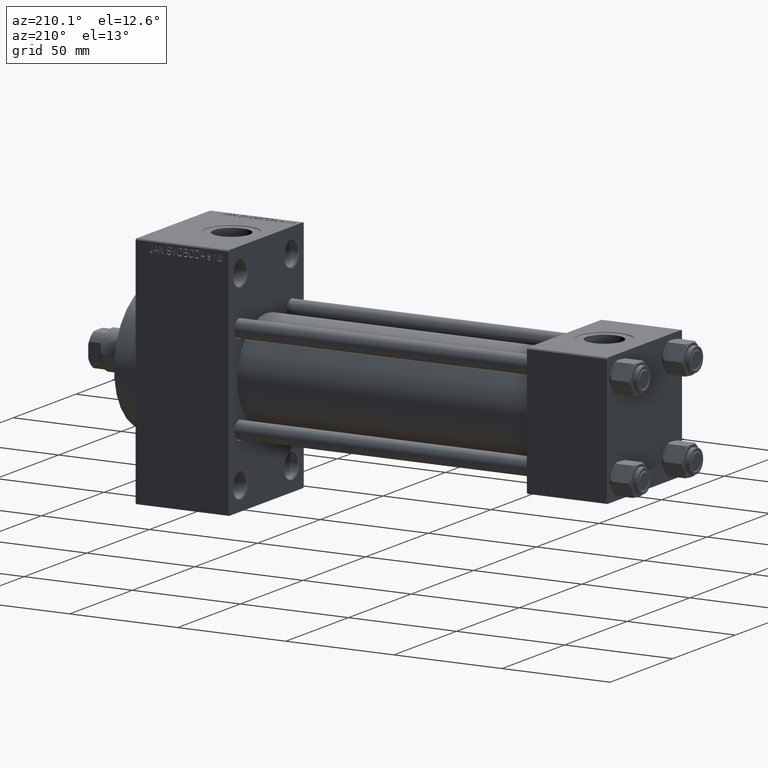
[diagram: clean part render]
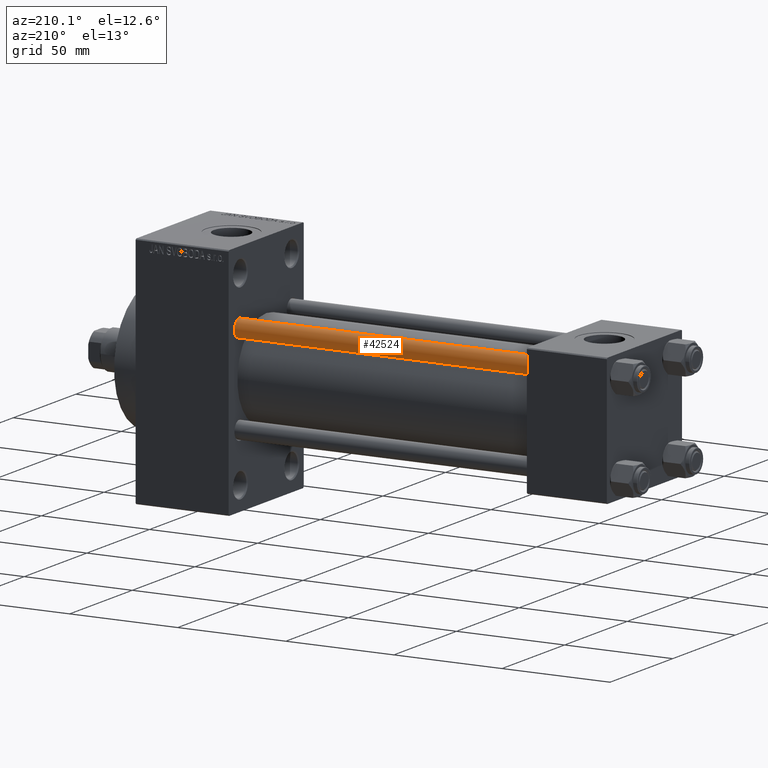
[diagram: same view with one face highlighted and labeled with its STEP entity id]
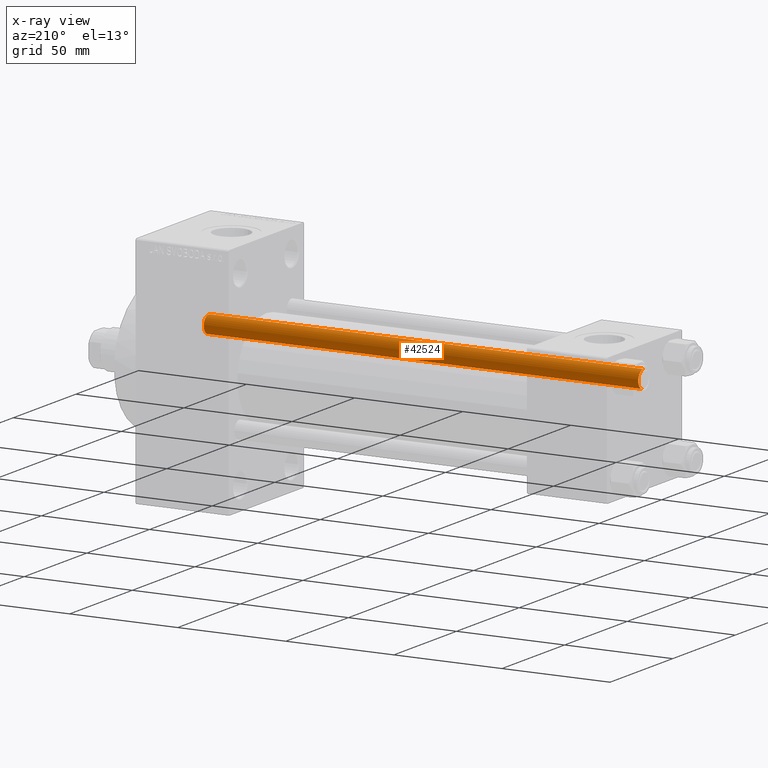
[diagram: x-ray of the same camera — body ghosted, the highlighted face saturated]
A machine part, auxiliary view. The second image highlights one B-rep face of the part: STEP entity #42524.
The next image is the same camera in x-ray: the body ghosted, the highlighted face saturated — about 0% of this face is hidden behind the body in this view.
In plain terms, the highlighted cylindrical surface (edge-blend (fillet) strip) has radius 4 mm, axis along (-1, -0, 0).
Its self-contained STEP definition (entity closure, byte-faithful):
#129 = CARTESIAN_POINT ( 'NONE',  ( 0.000000000000000000, 0.000000000000000000, 201.5000000000000000 ) ) ;
#1304 = ORIENTED_EDGE ( 'NONE', *, *, #17719, .T. ) ;
#2699 = CARTESIAN_POINT ( 'NONE',  ( 0.000000000000000000, 0.000000000000000000, 202.0000000000000000 ) ) ;
#3585 = CARTESIAN_POINT ( 'NONE',  ( 4.000000000000000000, 4.898587196589412829E-16, 202.0000000000000000 ) ) ;
#3744 = CIRCLE ( 'NONE', #33616, 4.000000000000000000 ) ;
#7874 = CARTESIAN_POINT ( 'NONE',  ( 4.000000000000000000, 4.898587196589412829E-16, 0.5000000000000004441 ) ) ;
#8035 = ORIENTED_EDGE ( 'NONE', *, *, #31050, .T. ) ;
#9084 = EDGE_CURVE ( 'NONE', #9222, #39484, #18455, .T. ) ;
#9222 = VERTEX_POINT ( 'NONE', #17457 ) ;
#9361 = AXIS2_PLACEMENT_3D ( 'NONE', #2699, #39164, #14848 ) ;
#11453 = EDGE_CURVE ( 'NONE', #39752, #46294, #17477, .T. ) ;
#11499 = CARTESIAN_POINT ( 'NONE',  ( -4.000000000000000000, 0.000000000000000000, 0.5000000000000004441 ) ) ;
#12237 = ORIENTED_EDGE ( 'NONE', *, *, #11453, .F. ) ;
#13636 = CARTESIAN_POINT ( 'NONE',  ( -4.000000000000000000, 0.000000000000000000, 202.0000000000000000 ) ) ;
#14848 = DIRECTION ( 'NONE',  ( -1.000000000000000000, 0.000000000000000000, 0.000000000000000000 ) ) ;
#17324 = FACE_OUTER_BOUND ( 'NONE', #32153, .T. ) ;
#17457 = CARTESIAN_POINT ( 'NONE',  ( 4.000000000000000000, 4.898587196589412829E-16, 201.5000000000000000 ) ) ;
#17477 = LINE ( 'NONE', #13636, #37906 ) ;
#17660 = CARTESIAN_POINT ( 'NONE',  ( -4.000000000000000000, 0.000000000000000000, 201.5000000000000000 ) ) ;
#17719 = EDGE_CURVE ( 'NONE', #39752, #9222, #25846, .T. ) ;
#18214 = DIRECTION ( 'NONE',  ( -0.000000000000000000, -0.000000000000000000, -1.000000000000000000 ) ) ;
#18455 = LINE ( 'NONE', #3585, #41763 ) ;
#21959 = DIRECTION ( 'NONE',  ( 1.000000000000000000, 0.000000000000000000, 0.000000000000000000 ) ) ;
#25846 = CIRCLE ( 'NONE', #30463, 4.000000000000000000 ) ;
#28123 = CYLINDRICAL_SURFACE ( 'NONE', #9361, 4.000000000000000000 ) ;
#30463 = AXIS2_PLACEMENT_3D ( 'NONE', #129, #43555, #21959 ) ;
#31050 = EDGE_CURVE ( 'NONE', #39484, #46294, #3744, .T. ) ;
#31471 = DIRECTION ( 'NONE',  ( 1.000000000000000000, 0.000000000000000000, 0.000000000000000000 ) ) ;
#32153 = EDGE_LOOP ( 'NONE', ( #1304, #39640, #8035, #12237 ) ) ;
#33616 = AXIS2_PLACEMENT_3D ( 'NONE', #45857, #42261, #31471 ) ;
#37906 = VECTOR ( 'NONE', #39784, 1000.000000000000000 ) ;
#39164 = DIRECTION ( 'NONE',  ( -0.000000000000000000, -0.000000000000000000, -1.000000000000000000 ) ) ;
#39484 = VERTEX_POINT ( 'NONE', #7874 ) ;
#39640 = ORIENTED_EDGE ( 'NONE', *, *, #9084, .T. ) ;
#39752 = VERTEX_POINT ( 'NONE', #17660 ) ;
#39784 = DIRECTION ( 'NONE',  ( -0.000000000000000000, -0.000000000000000000, -1.000000000000000000 ) ) ;
#41763 = VECTOR ( 'NONE', #18214, 1000.000000000000000 ) ;
#42261 = DIRECTION ( 'NONE',  ( -0.000000000000000000, -0.000000000000000000, 1.000000000000000000 ) ) ;
#42524 = ADVANCED_FACE ( 'NONE', ( #17324 ), #28123, .T. ) ;
#43555 = DIRECTION ( 'NONE',  ( 0.000000000000000000, 0.000000000000000000, -1.000000000000000000 ) ) ;
#45857 = CARTESIAN_POINT ( 'NONE',  ( 0.000000000000000000, 0.000000000000000000, 0.5000000000000004441 ) ) ;
#46294 = VERTEX_POINT ( 'NONE', #11499 ) ;